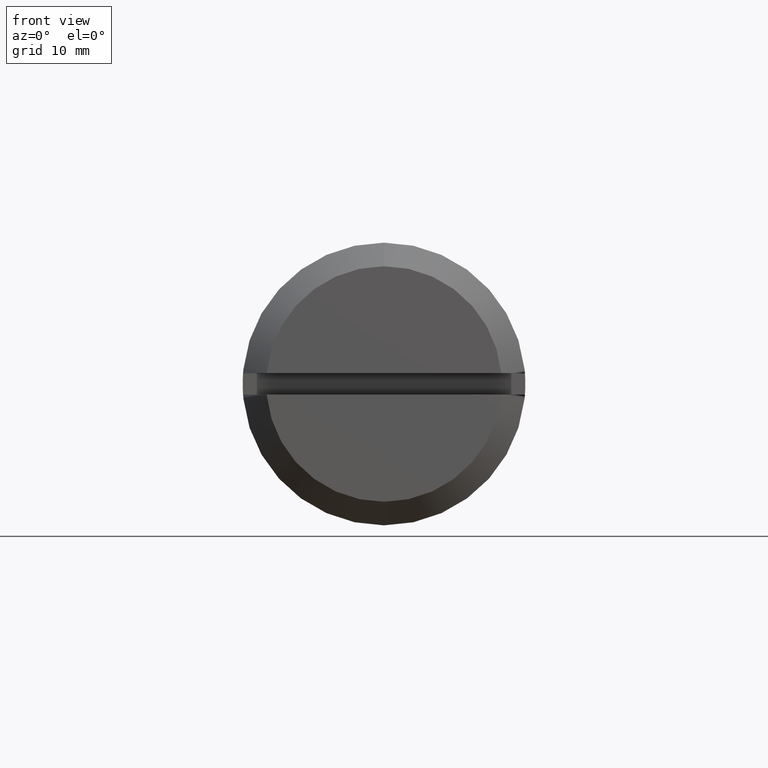
[diagram: clean part render]
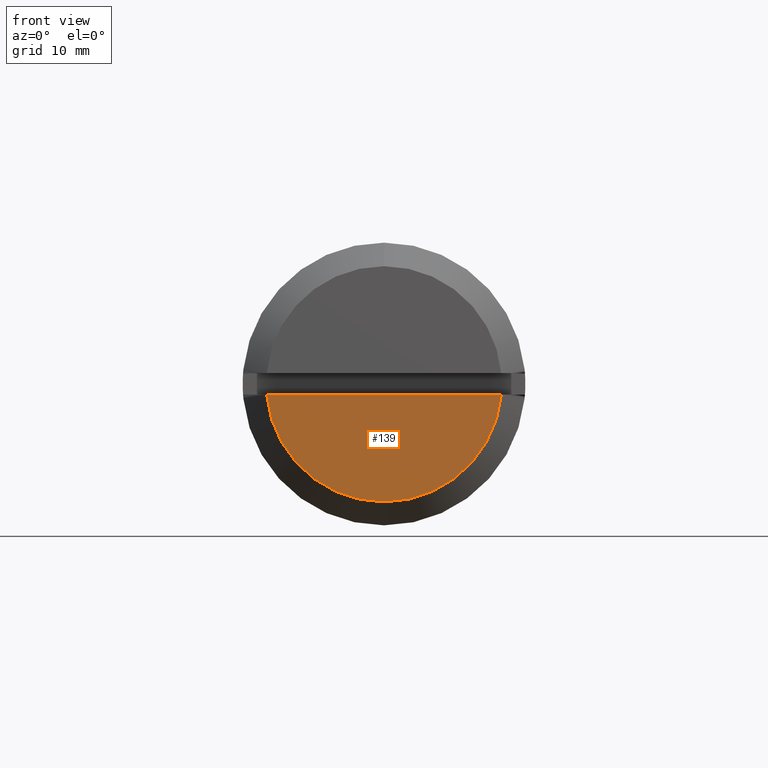
[diagram: same view with one face highlighted and labeled with its STEP entity id]
A machine part, front view. The second image highlights one B-rep face of the part: STEP entity #139.
In plain terms, the highlighted planar face has unit normal (0, 1, 0).
Its self-contained STEP definition (entity closure, byte-faithful):
#139=ADVANCED_FACE('',(#430),#429,.F.);
#429=PLANE('',#722);
#430=FACE_OUTER_BOUND('',#723,.T.);
#719=CARTESIAN_POINT('',(-1.19999000000E+01,-1.19513011844E+01,-1.09100000000E+01));
#720=DIRECTION('',(1.00000000000E+00,0.00000000000E+00,0.00000000000E+00));
#721=DIRECTION('',(0.00000000000E+00,1.00000000000E+00,0.00000000000E+00));
#722=AXIS2_PLACEMENT_3D('',#719,#720,#721);
#723=EDGE_LOOP('',(#965,#966,#967));
#965=ORIENTED_EDGE('',*,*,#1108,.T.);
#966=ORIENTED_EDGE('',*,*,#1109,.T.);
#967=ORIENTED_EDGE('',*,*,#1106,.F.);
#1106=EDGE_CURVE('',#1635,#1642,#1643,.T.);
#1108=EDGE_CURVE('',#1635,#1655,#1656,.T.);
#1109=EDGE_CURVE('',#1655,#1642,#1662,.T.);
#1635=VERTEX_POINT('',#2111);
#1642=VERTEX_POINT('',#2116);
#1643=LINE('',#2117,#2118);
#1655=VERTEX_POINT('',#2124);
#1656=CIRCLE('',#2128,1.00000000000E+01);
#1662=CIRCLE('',#2132,1.00000000000E+01);
#2111=CARTESIAN_POINT('',(-1.19999000000E+01,9.95941765366E+00,-9.00000000000E-01));
#2116=CARTESIAN_POINT('',(-1.19999000000E+01,-9.95941765366E+00,-9.00000000000E-01));
#2117=CARTESIAN_POINT('',(-1.19999000000E+01,9.95941765366E+00,-9.00000000000E-01));
#2118=VECTOR('',#2119,1.99188353073E+01);
#2119=DIRECTION('',(0.00000000000E+00,-1.00000000000E+00,0.00000000000E+00));
#2124=CARTESIAN_POINT('',(-1.19999000000E+01,2.44249065418E-15,-1.00000000000E+01));
#2125=CARTESIAN_POINT('',(-1.19999000000E+01,0.00000000000E+00,0.00000000000E+00));
#2126=DIRECTION('',(-1.00000000000E+00,0.00000000000E+00,0.00000000000E+00));
#2127=DIRECTION('',(-0.00000000000E+00,9.95941765366E-01,-9.00000000000E-02));
#2128=AXIS2_PLACEMENT_3D('',#2125,#2126,#2127);
#2129=CARTESIAN_POINT('',(-1.19999000000E+01,0.00000000000E+00,0.00000000000E+00));
#2130=DIRECTION('',(-1.00000000000E+00,0.00000000000E+00,0.00000000000E+00));
#2131=DIRECTION('',(-0.00000000000E+00,9.95941765366E-01,-9.00000000000E-02));
#2132=AXIS2_PLACEMENT_3D('',#2129,#2130,#2131);